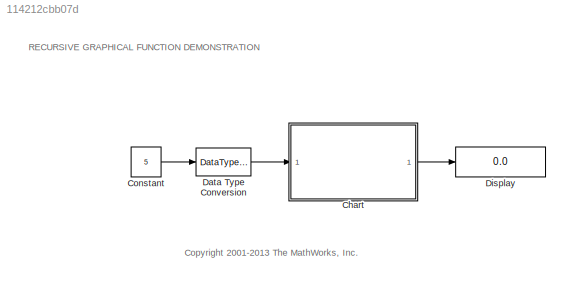
MODEL slx_114212cbb07d
KIND model
CONFIG AbsTol = auto
CONFIG EnableMultiTasking = on
CONFIG FixedStep = 1
CONFIG MaxStep = auto
CONFIG MinStep = auto
CONFIG RelTol = 1e-3
CONFIG SampleTimeConstraint = Unconstrained
CONFIG Solver = ode5
CONFIG SolverName = ode5
CONFIG StartTime = 0.0
CONFIG StopTime = 1
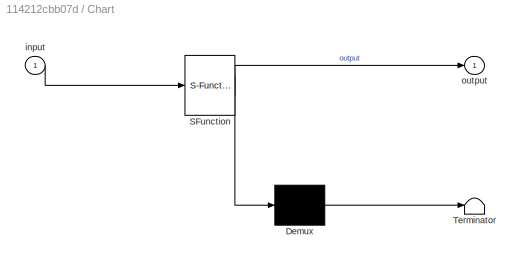
BLOCK [SubSystem] Chart
  ErrorFcn = Stateflow.Translate.translate
  PermitHierarchicalResolution = ExplicitOnly
  Ports = [1, 1]
  RequestExecContextInheritance = off
  SFBlockType = Chart
  TreatAsAtomicUnit = on
  Variant = off
BLOCK [Demux] Chart/ Demux 
  Outputs = 1
  Ports = [1, 1]
BLOCK [S-Function] Chart/ SFunction 
  EnableBusSupport = off
  FunctionName = sf_sfun
  PortCounts = [1 2]
  Ports = [1, 2]
  SFcnIsStateOwnerBlock = off
  SFunctionDeploymentMode = off
  Tag = Stateflow S-Function sf_gfrecursive 1
BLOCK [Terminator] Chart/ Terminator 
BLOCK [Inport] Chart/input
  IconDisplay = Port number
BLOCK [Outport] Chart/output
  IconDisplay = Port number
BLOCK [Constant] Constant
  Value = 5
BLOCK [DataTypeConversion] Data Type Conversion
  OutDataTypeStr = uint32
BLOCK [Display] Display
  Decimation = 1
  Ports = [1]
ANNOTATION (root): <copyright redacted>
ANNOTATION (root): RECURSIVE GRAPHICAL FUNCTION DEMONSTRATION
LINE Chart:1 -> Display:1
LINE Constant:1 -> Data Type Conversion:1
LINE Data Type Conversion:1 -> Chart:1
CHART Chart states=1 transitions=5
  STATE_LABEL 'result = factorial(n)'
  STATE_LABEL '[n==0]{result = 1;}'
  STATE_LABEL '[n>0 && n<21]\n{result = n*factorial(n-1);}'
  STATE_LABEL '/* if n >21, abort */\n{result = 0;}'
